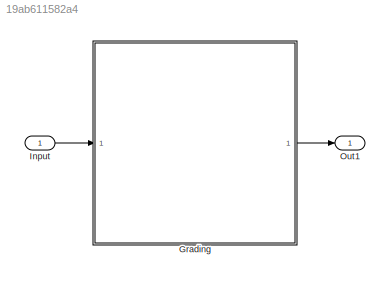
MODEL slx_19ab611582a4
KIND model
CONFIG AbsTol = auto
CONFIG EnableMultiTasking = off
CONFIG FixedStep = auto
CONFIG MaxStep = auto
CONFIG MinStep = auto
CONFIG RelTol = 1e-3
CONFIG SampleTimeConstraint = Unconstrained
CONFIG SolverName = VariableStepAuto
CONFIG StartTime = 0.0
CONFIG StopTime = 10.0
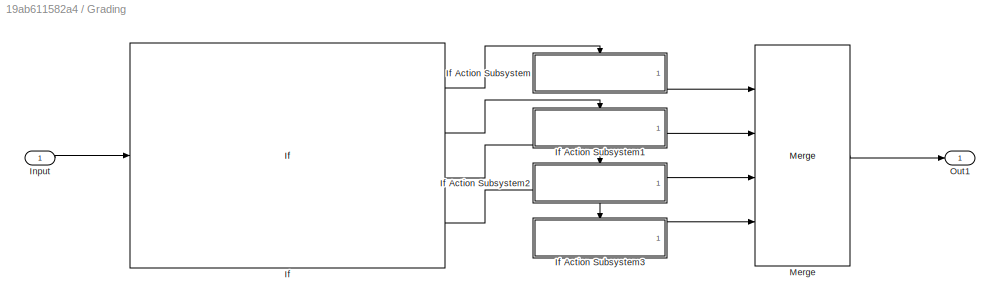
BLOCK [SubSystem] Grading
  Ports = [1, 1]
  RequestExecContextInheritance = off
BLOCK [If] Grading/If
  ElseIfExpressions = u1 < 90 & u1 >= 80,u1 < 80 & u1 >= 60
  IfExpression = u1 >= 90
  Ports = [1, 4]
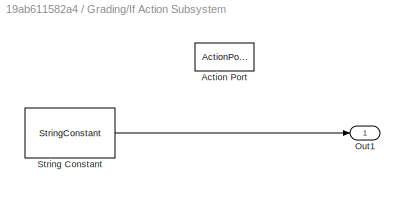
BLOCK [SubSystem] Grading/If Action Subsystem
  Ports = [0, 1, 0, 0, 0, 0, 0, 1]
  RequestExecContextInheritance = off
  TreatAsAtomicUnit = on
BLOCK [ActionPort] Grading/If Action Subsystem/Action Port
  ActionPortLabel = if(u1 >= 90)
BLOCK [Outport] Grading/If Action Subsystem/Out1
BLOCK [StringConstant] Grading/If Action Subsystem/String Constant
  String = "Excellent"
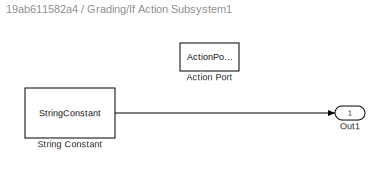
BLOCK [SubSystem] Grading/If Action Subsystem1
  Ports = [0, 1, 0, 0, 0, 0, 0, 1]
  RequestExecContextInheritance = off
  TreatAsAtomicUnit = on
BLOCK [ActionPort] Grading/If Action Subsystem1/Action Port
  ActionPortLabel = elseif(u1 < 90 & u1 >= 80)
BLOCK [Outport] Grading/If Action Subsystem1/Out1
BLOCK [StringConstant] Grading/If Action Subsystem1/String Constant
  String = "Very Good"
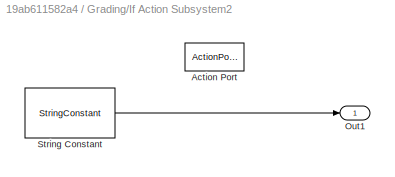
BLOCK [SubSystem] Grading/If Action Subsystem2
  Ports = [0, 1, 0, 0, 0, 0, 0, 1]
  RequestExecContextInheritance = off
  TreatAsAtomicUnit = on
BLOCK [ActionPort] Grading/If Action Subsystem2/Action Port
  ActionPortLabel = elseif(u1 < 80 & u1 >= 60)
BLOCK [Outport] Grading/If Action Subsystem2/Out1
BLOCK [StringConstant] Grading/If Action Subsystem2/String Constant
  String = "Pass"
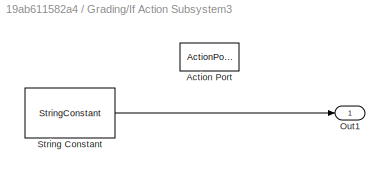
BLOCK [SubSystem] Grading/If Action Subsystem3
  Ports = [0, 1, 0, 0, 0, 0, 0, 1]
  RequestExecContextInheritance = off
  TreatAsAtomicUnit = on
BLOCK [ActionPort] Grading/If Action Subsystem3/Action Port
  ActionPortLabel = else
BLOCK [Outport] Grading/If Action Subsystem3/Out1
BLOCK [StringConstant] Grading/If Action Subsystem3/String Constant
  String = "Fail"
BLOCK [Inport] Grading/Input
BLOCK [Merge] Grading/Merge
  Inputs = 4
  Ports = [4, 1]
BLOCK [Outport] Grading/Out1
BLOCK [Inport] Input
BLOCK [Outport] Out1
LINE Grading/If Action Subsystem/String Constant:1 -> Grading/If Action Subsystem/Out1:1
LINE Grading/If Action Subsystem1/String Constant:1 -> Grading/If Action Subsystem1/Out1:1
LINE Grading/If Action Subsystem1:1 -> Grading/Merge:2
LINE Grading/If Action Subsystem2/String Constant:1 -> Grading/If Action Subsystem2/Out1:1
LINE Grading/If Action Subsystem2:1 -> Grading/Merge:3
LINE Grading/If Action Subsystem3/String Constant:1 -> Grading/If Action Subsystem3/Out1:1
LINE Grading/If Action Subsystem3:1 -> Grading/Merge:4
LINE Grading/If Action Subsystem:1 -> Grading/Merge:1
LINE Grading/If:1 -> Grading/If Action Subsystem:ifaction
LINE Grading/If:2 -> Grading/If Action Subsystem1:ifaction
LINE Grading/If:3 -> Grading/If Action Subsystem2:ifaction
LINE Grading/If:4 -> Grading/If Action Subsystem3:ifaction
LINE Grading/Input:1 -> Grading/If:1
LINE Grading/Merge:1 -> Grading/Out1:1
LINE Grading:1 -> Out1:1
LINE Input:1 -> Grading:1
